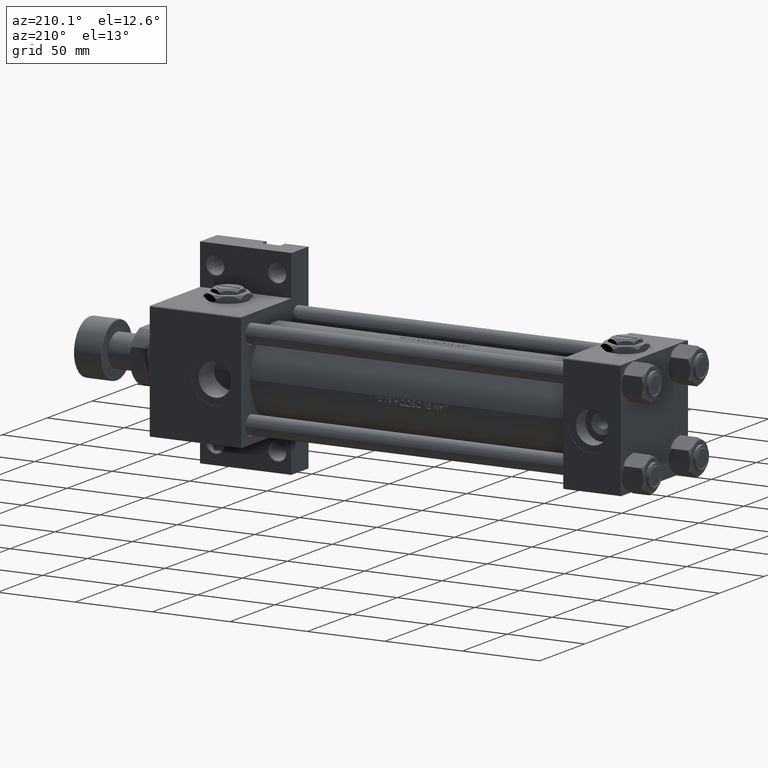
[diagram: clean part render]
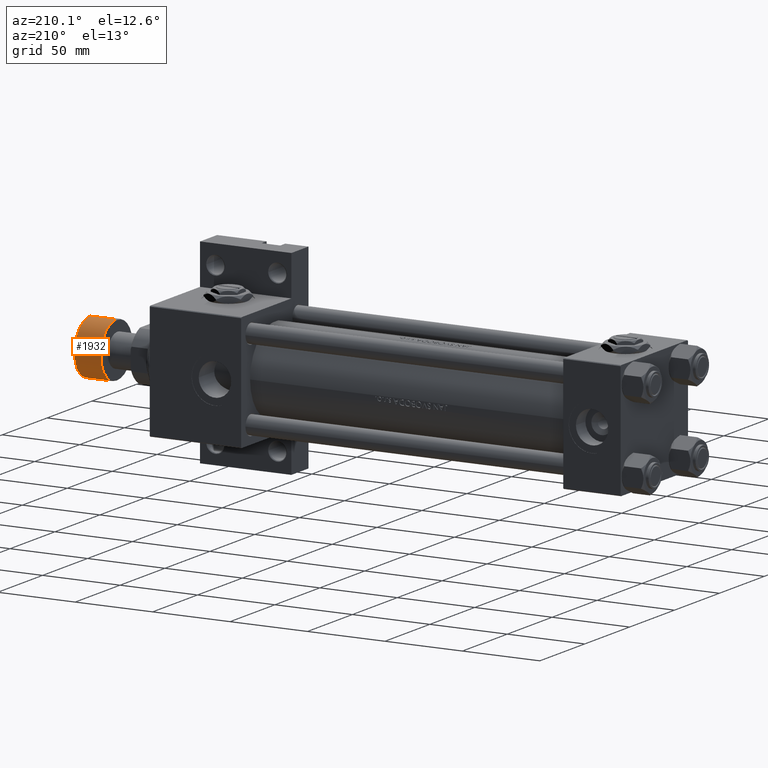
[diagram: same view with one face highlighted and labeled with its STEP entity id]
A machine part, auxiliary view. The second image highlights one B-rep face of the part: STEP entity #1932.
In plain terms, the highlighted cylindrical surface (edge-blend (fillet) strip) has radius 17.5 mm, axis along (1, 0, 0).
Its self-contained STEP definition (entity closure, byte-faithful):
#1932 = ADVANCED_FACE ( 'NONE', ( #20589 ), #17536, .T. ) ;
#4527 = EDGE_CURVE ( 'NONE', #39443, #27902, #16292, .T. ) ;
#5762 = ORIENTED_EDGE ( 'NONE', *, *, #16772, .T. ) ;
#6757 = CARTESIAN_POINT ( 'NONE',  ( 0.000000000000000000, 0.000000000000000000, -17.49999999999999645 ) ) ;
#6773 = CARTESIAN_POINT ( 'NONE',  ( 17.50000000000000355, 0.000000000000000000, -17.49999999999999645 ) ) ;
#8059 = AXIS2_PLACEMENT_3D ( 'NONE', #17782, #44381, #44136 ) ;
#10302 = DIRECTION ( 'NONE',  ( 1.000000000000000000, 0.000000000000000000, 0.000000000000000000 ) ) ;
#12182 = DIRECTION ( 'NONE',  ( 0.000000000000000000, 0.000000000000000000, 1.000000000000000000 ) ) ;
#12549 = CIRCLE ( 'NONE', #40876, 17.50000000000000355 ) ;
#13457 = EDGE_CURVE ( 'NONE', #15660, #41495, #12549, .T. ) ;
#13753 = VECTOR ( 'NONE', #18408, 1000.000000000000000 ) ;
#15660 = VERTEX_POINT ( 'NONE', #6773 ) ;
#16009 = CARTESIAN_POINT ( 'NONE',  ( -17.50000000000000355, 2.143131898507868643E-15, -18.00000000000000000 ) ) ;
#16292 = CIRCLE ( 'NONE', #25172, 17.50000000000000355 ) ;
#16772 = EDGE_CURVE ( 'NONE', #41495, #39443, #27652, .T. ) ;
#17536 = CYLINDRICAL_SURFACE ( 'NONE', #8059, 17.50000000000000355 ) ;
#17782 = CARTESIAN_POINT ( 'NONE',  ( 0.000000000000000000, 0.000000000000000000, -18.00000000000000000 ) ) ;
#18408 = DIRECTION ( 'NONE',  ( 0.000000000000000000, 0.000000000000000000, 1.000000000000000000 ) ) ;
#20589 = FACE_OUTER_BOUND ( 'NONE', #25603, .T. ) ;
#25172 = AXIS2_PLACEMENT_3D ( 'NONE', #41991, #46037, #30076 ) ;
#25432 = CARTESIAN_POINT ( 'NONE',  ( -17.50000000000000355, 2.143131898507868643E-15, -17.49999999999999645 ) ) ;
#25603 = EDGE_LOOP ( 'NONE', ( #26425, #5762, #44536, #42006 ) ) ;
#26001 = CARTESIAN_POINT ( 'NONE',  ( 17.50000000000000355, 0.000000000000000000, -18.00000000000000000 ) ) ;
#26425 = ORIENTED_EDGE ( 'NONE', *, *, #13457, .T. ) ;
#27652 = LINE ( 'NONE', #16009, #34604 ) ;
#27902 = VERTEX_POINT ( 'NONE', #30926 ) ;
#30076 = DIRECTION ( 'NONE',  ( 1.000000000000000000, 0.000000000000000000, 0.000000000000000000 ) ) ;
#30301 = LINE ( 'NONE', #26001, #13753 ) ;
#30926 = CARTESIAN_POINT ( 'NONE',  ( 17.50000000000000355, 0.000000000000000000, -0.5000000000000004441 ) ) ;
#33410 = EDGE_CURVE ( 'NONE', #15660, #27902, #30301, .T. ) ;
#34604 = VECTOR ( 'NONE', #12182, 1000.000000000000000 ) ;
#38472 = CARTESIAN_POINT ( 'NONE',  ( -17.50000000000000355, 2.143131898507868643E-15, -0.5000000000000004441 ) ) ;
#39443 = VERTEX_POINT ( 'NONE', #38472 ) ;
#40876 = AXIS2_PLACEMENT_3D ( 'NONE', #6757, #45022, #10302 ) ;
#41495 = VERTEX_POINT ( 'NONE', #25432 ) ;
#41991 = CARTESIAN_POINT ( 'NONE',  ( 0.000000000000000000, 0.000000000000000000, -0.5000000000000004441 ) ) ;
#42006 = ORIENTED_EDGE ( 'NONE', *, *, #33410, .F. ) ;
#44136 = DIRECTION ( 'NONE',  ( 1.000000000000000000, 0.000000000000000000, 0.000000000000000000 ) ) ;
#44381 = DIRECTION ( 'NONE',  ( 0.000000000000000000, 0.000000000000000000, 1.000000000000000000 ) ) ;
#44536 = ORIENTED_EDGE ( 'NONE', *, *, #4527, .T. ) ;
#45022 = DIRECTION ( 'NONE',  ( 0.000000000000000000, 0.000000000000000000, 1.000000000000000000 ) ) ;
#46037 = DIRECTION ( 'NONE',  ( -0.000000000000000000, -0.000000000000000000, -1.000000000000000000 ) ) ;